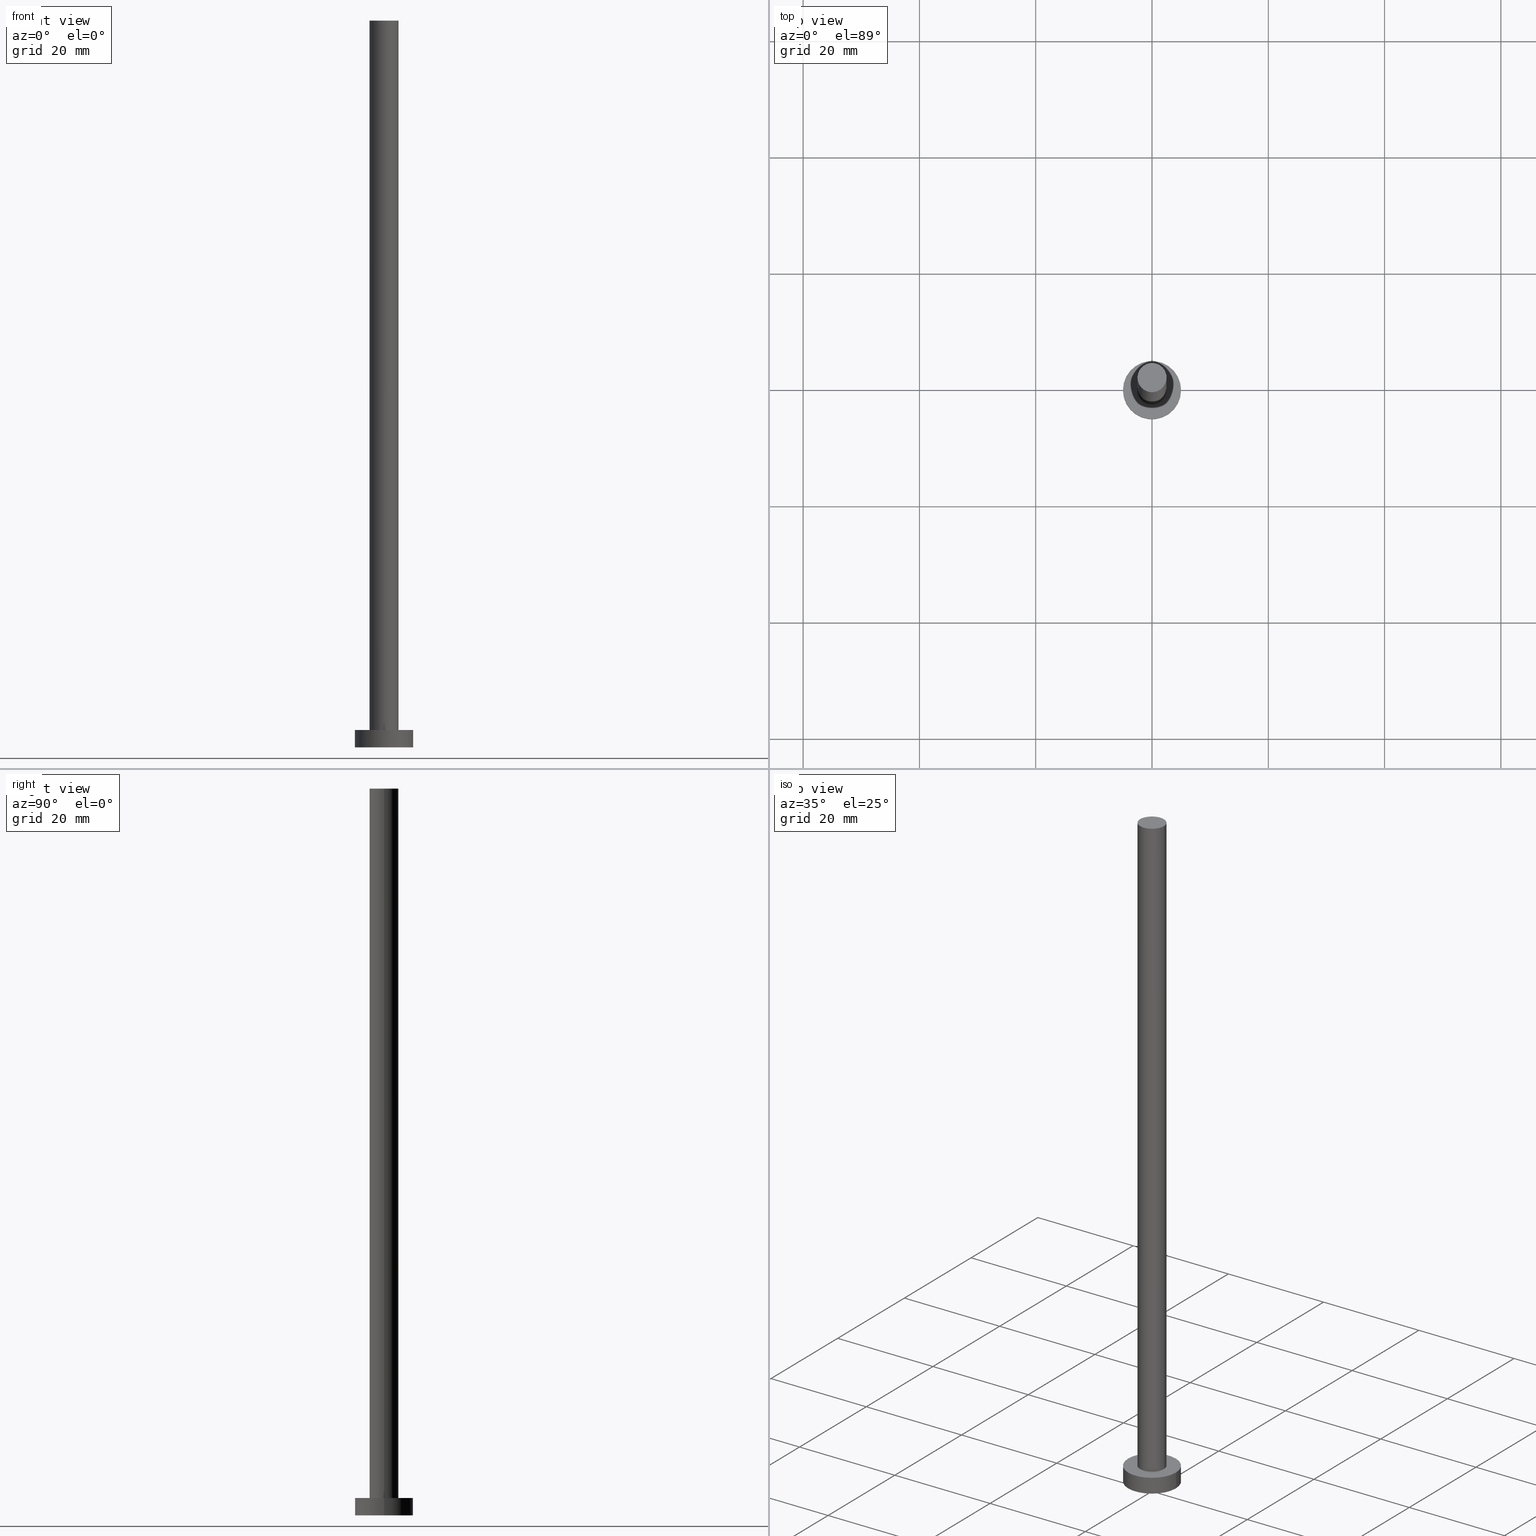
[diagram: canonical four-view strip — front | top / right | iso, engineering-drawing reading convention]
A machine part, canonical four-view strip (front | top / right | iso — engineering-drawing reading convention). The complete STEP part file that produces these views, byte-faithful:
ISO-10303-21;
HEADER;
FILE_DESCRIPTION (( 'STEP AP203' ),
    '1' );
FILE_NAME ('808c.STEP',
    '2023-02-13T13:26:53',
    ( '' ),
    ( '' ),
    'SwSTEP 2.0',
    'SolidWorks 2019',
    '' );
FILE_SCHEMA (( 'CONFIG_CONTROL_DESIGN' ));
ENDSEC;

DATA;
#1 = ORIENTED_EDGE ( 'NONE', *, *, #114, .F. ) ;
#2 = CYLINDRICAL_SURFACE ( 'NONE', #237, 5.000000000000000000 ) ;
#3 = ORIENTED_EDGE ( 'NONE', *, *, #49, .F. ) ;
#4 =( NAMED_UNIT ( * ) PLANE_ANGLE_UNIT ( ) SI_UNIT ( $, .RADIAN. ) );
#5 = DIRECTION ( 'NONE',  ( 1.000000000000000000, 0.000000000000000000, -0.000000000000000000 ) ) ;
#6 = CARTESIAN_POINT ( 'NONE',  ( 0.000000000000000000, 0.000000000000000000, 3.000000000000000000 ) ) ;
#7 = DIRECTION ( 'NONE',  ( 1.000000000000000000, 0.000000000000000000, 0.000000000000000000 ) ) ;
#8 = DIRECTION ( 'NONE',  ( 0.000000000000000000, 0.000000000000000000, 1.000000000000000000 ) ) ;
#9 = CALENDAR_DATE ( 2023, 13, 2 ) ;
#10 = DIRECTION ( 'NONE',  ( 1.000000000000000000, 0.000000000000000000, 0.000000000000000000 ) ) ;
#11 = CALENDAR_DATE ( 2023, 13, 2 ) ;
#12 = ADVANCED_FACE ( 'NONE', ( #46 ), #204, .T. ) ;
#13 = EDGE_LOOP ( 'NONE', ( #78, #92 ) ) ;
#14 = VERTEX_POINT ( 'NONE', #210 ) ;
#15 = CARTESIAN_POINT ( 'NONE',  ( 0.000000000000000000, 0.000000000000000000, 3.000000000000000000 ) ) ;
#16 = ORIENTED_EDGE ( 'NONE', *, *, #49, .T. ) ;
#17 = CIRCLE ( 'NONE', #250, 5.000000000000000000 ) ;
#18 = APPROVAL_PERSON_ORGANIZATION ( #249, #51, #170 ) ;
#19 = LINE ( 'NONE', #34, #159 ) ;
#20 = DIRECTION ( 'NONE',  ( 1.000000000000000000, 0.000000000000000000, 0.000000000000000000 ) ) ;
#21 = CARTESIAN_POINT ( 'NONE',  ( 5.000000000000000000, 6.123233995736766282E-16, 3.000000000000000000 ) ) ;
#22 = ADVANCED_FACE ( 'NONE', ( #90, #168 ), #69, .T. ) ;
#23 = APPROVAL_DATE_TIME ( #40, #27 ) ;
#24 = DIRECTION ( 'NONE',  ( 1.000000000000000000, 0.000000000000000000, 0.000000000000000000 ) ) ;
#25 = AXIS2_PLACEMENT_3D ( 'NONE', #6, #76, #20 ) ;
#26 = DIRECTION ( 'NONE',  ( -0.000000000000000000, -0.000000000000000000, -1.000000000000000000 ) ) ;
#27 = APPROVAL ( #221, 'NEUR�EN�' ) ;
#28 = PRODUCT_RELATED_PRODUCT_CATEGORY ( 'detail', '', ( #61 ) ) ;
#29 = CALENDAR_DATE ( 2023, 13, 2 ) ;
#30 = EDGE_LOOP ( 'NONE', ( #3, #115, #214, #74 ) ) ;
#31 = CIRCLE ( 'NONE', #219, 2.500000000000000000 ) ;
#32 = ORIENTED_EDGE ( 'NONE', *, *, #225, .T. ) ;
#33 = ORIENTED_EDGE ( 'NONE', *, *, #207, .T. ) ;
#34 = CARTESIAN_POINT ( 'NONE',  ( -5.000000000000000000, 0.000000000000000000, 3.000000000000000000 ) ) ;
#35 = CIRCLE ( 'NONE', #25, 2.500000000000000000 ) ;
#36 = DIRECTION ( 'NONE',  ( -0.000000000000000000, -0.000000000000000000, -1.000000000000000000 ) ) ;
#37 = DIRECTION ( 'NONE',  ( 1.000000000000000000, 0.000000000000000000, 0.000000000000000000 ) ) ;
#38 = CC_DESIGN_DATE_AND_TIME_ASSIGNMENT ( #154, #252, ( #119 ) ) ;
#39 = EDGE_CURVE ( 'NONE', #108, #135, #56, .T. ) ;
#40 = DATE_AND_TIME ( #203, #137 ) ;
#41 = CARTESIAN_POINT ( 'NONE',  ( 2.500000000000000000, 3.061616997868382648E-16, 125.0000000000000000 ) ) ;
#42 = CC_DESIGN_APPROVAL ( #125, ( #208 ) ) ;
#43 = PERSON_AND_ORGANIZATION ( #180, #251 ) ;
#44 = APPLICATION_CONTEXT ( 'configuration controlled 3d designs of mechanical parts and assemblies' ) ;
#45 = DIRECTION ( 'NONE',  ( 1.000000000000000000, 0.000000000000000000, 0.000000000000000000 ) ) ;
#46 = FACE_OUTER_BOUND ( 'NONE', #96, .T. ) ;
#47 = AXIS2_PLACEMENT_3D ( 'NONE', #183, #60, #37 ) ;
#48 = CARTESIAN_POINT ( 'NONE',  ( 0.000000000000000000, 0.000000000000000000, 125.0000000000000000 ) ) ;
#49 = EDGE_CURVE ( 'NONE', #108, #70, #222, .T. ) ;
#50 = APPROVAL_DATE_TIME ( #209, #51 ) ;
#51 = APPROVAL ( #166, 'NEUR�EN�' ) ;
#52 = DIRECTION ( 'NONE',  ( 1.000000000000000000, 0.000000000000000000, -0.000000000000000000 ) ) ;
#53 = ORIENTED_EDGE ( 'NONE', *, *, #114, .T. ) ;
#54 =( NAMED_UNIT ( * ) SI_UNIT ( $, .STERADIAN. ) SOLID_ANGLE_UNIT ( ) );
#55 = DIRECTION ( 'NONE',  ( 0.000000000000000000, 0.000000000000000000, 1.000000000000000000 ) ) ;
#56 = LINE ( 'NONE', #41, #73 ) ;
#57 = CARTESIAN_POINT ( 'NONE',  ( -2.500000000000000000, 0.000000000000000000, 125.0000000000000000 ) ) ;
#58 = CC_DESIGN_APPROVAL ( #27, ( #247 ) ) ;
#59 = CC_DESIGN_DATE_AND_TIME_ASSIGNMENT ( #224, #240, ( #208 ) ) ;
#60 = DIRECTION ( 'NONE',  ( 0.000000000000000000, 0.000000000000000000, 1.000000000000000000 ) ) ;
#61 = PRODUCT ( '808c', '808c', '', ( #162 ) ) ;
#62 = COORDINATED_UNIVERSAL_TIME_OFFSET ( 1, 0, .AHEAD. ) ;
#63 = DIRECTION ( 'NONE',  ( 1.000000000000000000, 0.000000000000000000, 0.000000000000000000 ) ) ;
#64 = APPROVAL_STATUS ( 'not_yet_approved' ) ;
#65 = AXIS2_PLACEMENT_3D ( 'NONE', #223, #124, #24 ) ;
#66 = CARTESIAN_POINT ( 'NONE',  ( -5.000000000000000000, 0.000000000000000000, 3.000000000000000000 ) ) ;
#67 = ORIENTED_EDGE ( 'NONE', *, *, #184, .T. ) ;
#68 = PERSON_AND_ORGANIZATION_ROLE ( 'creator' ) ;
#69 = PLANE ( 'NONE',  #191 ) ;
#70 = VERTEX_POINT ( 'NONE', #57 ) ;
#71 = ORIENTED_EDGE ( 'NONE', *, *, #254, .T. ) ;
#72 = DIRECTION ( 'NONE',  ( -1.000000000000000000, 0.000000000000000000, 0.000000000000000000 ) ) ;
#73 = VECTOR ( 'NONE', #36, 1000.000000000000000 ) ;
#74 = ORIENTED_EDGE ( 'NONE', *, *, #225, .F. ) ;
#75 = CARTESIAN_POINT ( 'NONE',  ( 0.000000000000000000, 0.000000000000000000, 0.000000000000000000 ) ) ;
#76 = DIRECTION ( 'NONE',  ( 0.000000000000000000, 0.000000000000000000, 1.000000000000000000 ) ) ;
#77 = EDGE_CURVE ( 'NONE', #232, #177, #17, .T. ) ;
#78 = ORIENTED_EDGE ( 'NONE', *, *, #254, .F. ) ;
#79 = ADVANCED_FACE ( 'NONE', ( #157 ), #235, .F. ) ;
#80 = CLOSED_SHELL ( 'NONE', ( #217, #128, #123, #22, #79, #12, #86 ) ) ;
#81 = CIRCLE ( 'NONE', #65, 5.000000000000000000 ) ;
#82 = CARTESIAN_POINT ( 'NONE',  ( 0.000000000000000000, 0.000000000000000000, 125.0000000000000000 ) ) ;
#83 = PERSON_AND_ORGANIZATION_ROLE ( 'creator' ) ;
#84 = DIRECTION ( 'NONE',  ( 0.000000000000000000, 0.000000000000000000, 1.000000000000000000 ) ) ;
#85 = CC_DESIGN_PERSON_AND_ORGANIZATION_ASSIGNMENT ( #245, #105, ( #61 ) ) ;
#86 = ADVANCED_FACE ( 'NONE', ( #99 ), #142, .T. ) ;
#87 = AXIS2_PLACEMENT_3D ( 'NONE', #82, #112, #229 ) ;
#88 = EDGE_LOOP ( 'NONE', ( #197, #94, #193, #1 ) ) ;
#89 = PERSON_AND_ORGANIZATION_ROLE ( 'classification_officer' ) ;
#90 = FACE_BOUND ( 'NONE', #13, .T. ) ;
#91 = CIRCLE ( 'NONE', #194, 2.500000000000000000 ) ;
#92 = ORIENTED_EDGE ( 'NONE', *, *, #134, .F. ) ;
#93 = APPLICATION_CONTEXT ( 'configuration controlled 3d designs of mechanical parts and assemblies' ) ;
#94 = ORIENTED_EDGE ( 'NONE', *, *, #190, .T. ) ;
#95 = DIRECTION ( 'NONE',  ( -0.000000000000000000, -0.000000000000000000, -1.000000000000000000 ) ) ;
#96 = EDGE_LOOP ( 'NONE', ( #133, #158, #32, #71 ) ) ;
#97 = DIRECTION ( 'NONE',  ( 0.000000000000000000, 0.000000000000000000, 1.000000000000000000 ) ) ;
#98 = DIRECTION ( 'NONE',  ( -1.000000000000000000, 0.000000000000000000, 0.000000000000000000 ) ) ;
#99 = FACE_OUTER_BOUND ( 'NONE', #138, .T. ) ;
#100 = CARTESIAN_POINT ( 'NONE',  ( 0.000000000000000000, 0.000000000000000000, 3.000000000000000000 ) ) ;
#101 = LOCAL_TIME ( 14, 26, 53.00000000000000000, #102 ) ;
#102 = COORDINATED_UNIVERSAL_TIME_OFFSET ( 1, 0, .AHEAD. ) ;
#103 = PERSON_AND_ORGANIZATION ( #180, #251 ) ;
#104 = CARTESIAN_POINT ( 'NONE',  ( 0.000000000000000000, 0.000000000000000000, 3.000000000000000000 ) ) ;
#105 = PERSON_AND_ORGANIZATION_ROLE ( 'design_owner' ) ;
#106 = VECTOR ( 'NONE', #243, 1000.000000000000000 ) ;
#107 = CC_DESIGN_APPROVAL ( #51, ( #119 ) ) ;
#108 = VERTEX_POINT ( 'NONE', #196 ) ;
#109 = VERTEX_POINT ( 'NONE', #120 ) ;
#110 = COORDINATED_UNIVERSAL_TIME_OFFSET ( 1, 0, .AHEAD. ) ;
#111 =( LENGTH_UNIT ( ) NAMED_UNIT ( * ) SI_UNIT ( .MILLI., .METRE. ) );
#112 = DIRECTION ( 'NONE',  ( -0.000000000000000000, -0.000000000000000000, -1.000000000000000000 ) ) ;
#113 = AXIS2_PLACEMENT_3D ( 'NONE', #131, #189, #206 ) ;
#114 = EDGE_CURVE ( 'NONE', #232, #175, #19, .T. ) ;
#115 = ORIENTED_EDGE ( 'NONE', *, *, #39, .T. ) ;
#116 = DIRECTION ( 'NONE',  ( 1.000000000000000000, 0.000000000000000000, -0.000000000000000000 ) ) ;
#117 = CYLINDRICAL_SURFACE ( 'NONE', #187, 5.000000000000000000 ) ;
#118 = AXIS2_PLACEMENT_3D ( 'NONE', #122, #97, #5 ) ;
#119 = SECURITY_CLASSIFICATION ( '', '', #192 ) ;
#120 = CARTESIAN_POINT ( 'NONE',  ( -2.500000000000000000, 0.000000000000000000, 3.000000000000000000 ) ) ;
#121 = CARTESIAN_POINT ( 'NONE',  ( -5.000000000000000000, 0.000000000000000000, 0.000000000000000000 ) ) ;
#122 = CARTESIAN_POINT ( 'NONE',  ( 0.000000000000000000, 0.000000000000000000, 125.0000000000000000 ) ) ;
#123 = ADVANCED_FACE ( 'NONE', ( #178 ), #2, .T. ) ;
#124 = DIRECTION ( 'NONE',  ( 0.000000000000000000, 0.000000000000000000, 1.000000000000000000 ) ) ;
#125 = APPROVAL ( #64, 'NEUR�EN�' ) ;
#126 = DIRECTION ( 'NONE',  ( 1.000000000000000000, 0.000000000000000000, 0.000000000000000000 ) ) ;
#127 = CARTESIAN_POINT ( 'NONE',  ( 5.000000000000000000, 6.123233995736766282E-16, 3.000000000000000000 ) ) ;
#128 = ADVANCED_FACE ( 'NONE', ( #236 ), #117, .T. ) ;
#129 = CIRCLE ( 'NONE', #47, 5.000000000000000000 ) ;
#130 = CC_DESIGN_SECURITY_CLASSIFICATION ( #119, ( #247 ) ) ;
#131 = CARTESIAN_POINT ( 'NONE',  ( 0.000000000000000000, 0.000000000000000000, 125.0000000000000000 ) ) ;
#132 = APPROVAL_PERSON_ORGANIZATION ( #143, #27, #148 ) ;
#133 = ORIENTED_EDGE ( 'NONE', *, *, #39, .F. ) ;
#134 = EDGE_CURVE ( 'NONE', #135, #109, #35, .T. ) ;
#135 = VERTEX_POINT ( 'NONE', #160 ) ;
#136 = EDGE_CURVE ( 'NONE', #14, #175, #129, .T. ) ;
#137 = LOCAL_TIME ( 14, 26, 53.00000000000000000, #220 ) ;
#138 = EDGE_LOOP ( 'NONE', ( #33, #16 ) ) ;
#139 = DIRECTION ( 'NONE',  ( -0.000000000000000000, -0.000000000000000000, -1.000000000000000000 ) ) ;
#140 = CARTESIAN_POINT ( 'NONE',  ( 0.000000000000000000, 0.000000000000000000, 125.0000000000000000 ) ) ;
#141 = PRODUCT_DEFINITION_SHAPE ( 'NONE', 'NONE',  #208 ) ;
#142 = PLANE ( 'NONE',  #118 ) ;
#143 = PERSON_AND_ORGANIZATION ( #180, #251 ) ;
#144 = DIRECTION ( 'NONE',  ( 0.000000000000000000, 0.000000000000000000, 1.000000000000000000 ) ) ;
#145 = CC_DESIGN_PERSON_AND_ORGANIZATION_ASSIGNMENT ( #103, #68, ( #247 ) ) ;
#146 = FACE_OUTER_BOUND ( 'NONE', #30, .T. ) ;
#147 = APPROVAL_DATE_TIME ( #241, #125 ) ;
#148 = APPROVAL_ROLE ( '' ) ;
#149 = SHAPE_DEFINITION_REPRESENTATION ( #141, #211 ) ;
#150 =( GEOMETRIC_REPRESENTATION_CONTEXT ( 3 ) GLOBAL_UNCERTAINTY_ASSIGNED_CONTEXT ( ( #212 ) ) GLOBAL_UNIT_ASSIGNED_CONTEXT ( ( #111, #4, #54 ) ) REPRESENTATION_CONTEXT ( 'NONE', 'WORKASPACE' ) );
#151 = PERSON_AND_ORGANIZATION_ROLE ( 'design_supplier' ) ;
#152 = CARTESIAN_POINT ( 'NONE',  ( 0.000000000000000000, 0.000000000000000000, 3.000000000000000000 ) ) ;
#153 = CC_DESIGN_PERSON_AND_ORGANIZATION_ASSIGNMENT ( #248, #89, ( #119 ) ) ;
#154 = DATE_AND_TIME ( #29, #171 ) ;
#155 = ORIENTED_EDGE ( 'NONE', *, *, #77, .T. ) ;
#156 = ORIENTED_EDGE ( 'NONE', *, *, #136, .F. ) ;
#157 = FACE_OUTER_BOUND ( 'NONE', #215, .T. ) ;
#158 = ORIENTED_EDGE ( 'NONE', *, *, #207, .F. ) ;
#159 = VECTOR ( 'NONE', #139, 1000.000000000000000 ) ;
#160 = CARTESIAN_POINT ( 'NONE',  ( 2.500000000000000000, 3.061616997868382648E-16, 3.000000000000000000 ) ) ;
#161 = AXIS2_PLACEMENT_3D ( 'NONE', #176, #55, #126 ) ;
#162 = MECHANICAL_CONTEXT ( 'NONE', #93, 'mechanical' ) ;
#163 = LINE ( 'NONE', #127, #106 ) ;
#164 = ORIENTED_EDGE ( 'NONE', *, *, #190, .F. ) ;
#165 = CYLINDRICAL_SURFACE ( 'NONE', #113, 2.500000000000000000 ) ;
#166 = APPROVAL_STATUS ( 'not_yet_approved' ) ;
#167 = COORDINATED_UNIVERSAL_TIME_OFFSET ( 1, 0, .AHEAD. ) ;
#168 = FACE_OUTER_BOUND ( 'NONE', #173, .T. ) ;
#169 = CC_DESIGN_PERSON_AND_ORGANIZATION_ASSIGNMENT ( #43, #83, ( #208 ) ) ;
#170 = APPROVAL_ROLE ( '' ) ;
#171 = LOCAL_TIME ( 14, 26, 53.00000000000000000, #167 ) ;
#172 = EDGE_LOOP ( 'NONE', ( #164, #234, #53, #195 ) ) ;
#173 = EDGE_LOOP ( 'NONE', ( #155, #67 ) ) ;
#174 = DESIGN_CONTEXT ( 'detailed design', #44, 'design' ) ;
#175 = VERTEX_POINT ( 'NONE', #121 ) ;
#176 = CARTESIAN_POINT ( 'NONE',  ( 0.000000000000000000, 0.000000000000000000, 0.000000000000000000 ) ) ;
#177 = VERTEX_POINT ( 'NONE', #21 ) ;
#178 = FACE_OUTER_BOUND ( 'NONE', #172, .T. ) ;
#179 = APPROVAL_PERSON_ORGANIZATION ( #202, #125, #188 ) ;
#180 = PERSON ( 'NEUR�EN�', 'NEUR�EN�', 'NEUR�EN�', ('NEUR�EN�'), ('NEUR�EN�'), ('NEUR�EN�') ) ;
#181 = CARTESIAN_POINT ( 'NONE',  ( 0.000000000000000000, 0.000000000000000000, 3.000000000000000000 ) ) ;
#182 = MANIFOLD_SOLID_BREP ( 'P�idat vysunut�m3', #80 ) ;
#183 = CARTESIAN_POINT ( 'NONE',  ( 0.000000000000000000, 0.000000000000000000, 0.000000000000000000 ) ) ;
#184 = EDGE_CURVE ( 'NONE', #177, #232, #205, .T. ) ;
#185 = DIRECTION ( 'NONE',  ( 0.000000000000000000, 0.000000000000000000, 1.000000000000000000 ) ) ;
#186 = DIRECTION ( 'NONE',  ( 0.000000000000000000, 0.000000000000000000, 1.000000000000000000 ) ) ;
#187 = AXIS2_PLACEMENT_3D ( 'NONE', #199, #95, #98 ) ;
#188 = APPROVAL_ROLE ( '' ) ;
#189 = DIRECTION ( 'NONE',  ( -0.000000000000000000, -0.000000000000000000, -1.000000000000000000 ) ) ;
#190 = EDGE_CURVE ( 'NONE', #177, #14, #163, .T. ) ;
#191 = AXIS2_PLACEMENT_3D ( 'NONE', #152, #230, #52 ) ;
#192 = SECURITY_CLASSIFICATION_LEVEL ( 'unclassified' ) ;
#193 = ORIENTED_EDGE ( 'NONE', *, *, #136, .T. ) ;
#194 = AXIS2_PLACEMENT_3D ( 'NONE', #48, #84, #63 ) ;
#195 = ORIENTED_EDGE ( 'NONE', *, *, #233, .T. ) ;
#196 = CARTESIAN_POINT ( 'NONE',  ( 2.500000000000000000, 3.061616997868382648E-16, 125.0000000000000000 ) ) ;
#197 = ORIENTED_EDGE ( 'NONE', *, *, #184, .F. ) ;
#198 = AXIS2_PLACEMENT_3D ( 'NONE', #75, #216, #116 ) ;
#199 = CARTESIAN_POINT ( 'NONE',  ( 0.000000000000000000, 0.000000000000000000, 3.000000000000000000 ) ) ;
#200 = APPLICATION_PROTOCOL_DEFINITION ( 'international standard', 'config_control_design', 1994, #93 ) ;
#201 = DIRECTION ( 'NONE',  ( -0.000000000000000000, -0.000000000000000000, -1.000000000000000000 ) ) ;
#202 = PERSON_AND_ORGANIZATION ( #180, #251 ) ;
#203 = CALENDAR_DATE ( 2023, 13, 2 ) ;
#204 = CYLINDRICAL_SURFACE ( 'NONE', #87, 2.500000000000000000 ) ;
#205 = CIRCLE ( 'NONE', #244, 5.000000000000000000 ) ;
#206 = DIRECTION ( 'NONE',  ( -1.000000000000000000, 0.000000000000000000, 0.000000000000000000 ) ) ;
#207 = EDGE_CURVE ( 'NONE', #70, #108, #91, .T. ) ;
#208 = PRODUCT_DEFINITION ( 'NEZN�M�', '', #247, #174 ) ;
#209 = DATE_AND_TIME ( #228, #238 ) ;
#210 = CARTESIAN_POINT ( 'NONE',  ( 5.000000000000000000, 6.123233995736766282E-16, 0.000000000000000000 ) ) ;
#211 = ADVANCED_BREP_SHAPE_REPRESENTATION ( '808c', ( #182, #161 ), #150 ) ;
#212 = UNCERTAINTY_MEASURE_WITH_UNIT (LENGTH_MEASURE( 1.000000000000000082E-05 ), #111, 'distance_accuracy_value', 'NONE');
#213 = LOCAL_TIME ( 14, 26, 53.00000000000000000, #62 ) ;
#214 = ORIENTED_EDGE ( 'NONE', *, *, #134, .T. ) ;
#215 = EDGE_LOOP ( 'NONE', ( #253, #156 ) ) ;
#216 = DIRECTION ( 'NONE',  ( 0.000000000000000000, 0.000000000000000000, 1.000000000000000000 ) ) ;
#217 = ADVANCED_FACE ( 'NONE', ( #146 ), #165, .T. ) ;
#218 = DIRECTION ( 'NONE',  ( 1.000000000000000000, 0.000000000000000000, 0.000000000000000000 ) ) ;
#219 = AXIS2_PLACEMENT_3D ( 'NONE', #104, #186, #10 ) ;
#220 = COORDINATED_UNIVERSAL_TIME_OFFSET ( 1, 0, .AHEAD. ) ;
#221 = APPROVAL_STATUS ( 'not_yet_approved' ) ;
#222 = CIRCLE ( 'NONE', #242, 2.500000000000000000 ) ;
#223 = CARTESIAN_POINT ( 'NONE',  ( 0.000000000000000000, 0.000000000000000000, 0.000000000000000000 ) ) ;
#224 = DATE_AND_TIME ( #9, #101 ) ;
#225 = EDGE_CURVE ( 'NONE', #70, #109, #227, .T. ) ;
#226 = VECTOR ( 'NONE', #26, 1000.000000000000000 ) ;
#227 = LINE ( 'NONE', #246, #226 ) ;
#228 = CALENDAR_DATE ( 2023, 13, 2 ) ;
#229 = DIRECTION ( 'NONE',  ( -1.000000000000000000, 0.000000000000000000, 0.000000000000000000 ) ) ;
#230 = DIRECTION ( 'NONE',  ( 0.000000000000000000, 0.000000000000000000, 1.000000000000000000 ) ) ;
#231 = PERSON_AND_ORGANIZATION ( #180, #251 ) ;
#232 = VERTEX_POINT ( 'NONE', #66 ) ;
#233 = EDGE_CURVE ( 'NONE', #175, #14, #81, .T. ) ;
#234 = ORIENTED_EDGE ( 'NONE', *, *, #77, .F. ) ;
#235 = PLANE ( 'NONE',  #198 ) ;
#236 = FACE_OUTER_BOUND ( 'NONE', #88, .T. ) ;
#237 = AXIS2_PLACEMENT_3D ( 'NONE', #15, #201, #72 ) ;
#238 = LOCAL_TIME ( 14, 26, 53.00000000000000000, #110 ) ;
#239 = APPLICATION_PROTOCOL_DEFINITION ( 'international standard', 'config_control_design', 1994, #44 ) ;
#240 = DATE_TIME_ROLE ( 'creation_date' ) ;
#241 = DATE_AND_TIME ( #11, #213 ) ;
#242 = AXIS2_PLACEMENT_3D ( 'NONE', #140, #144, #7 ) ;
#243 = DIRECTION ( 'NONE',  ( -0.000000000000000000, -0.000000000000000000, -1.000000000000000000 ) ) ;
#244 = AXIS2_PLACEMENT_3D ( 'NONE', #100, #185, #45 ) ;
#245 = PERSON_AND_ORGANIZATION ( #180, #251 ) ;
#246 = CARTESIAN_POINT ( 'NONE',  ( -2.500000000000000000, 0.000000000000000000, 125.0000000000000000 ) ) ;
#247 = PRODUCT_DEFINITION_FORMATION_WITH_SPECIFIED_SOURCE ( 'LIBOVOLN�', '', #61, .NOT_KNOWN. ) ;
#248 = PERSON_AND_ORGANIZATION ( #180, #251 ) ;
#249 = PERSON_AND_ORGANIZATION ( #180, #251 ) ;
#250 = AXIS2_PLACEMENT_3D ( 'NONE', #181, #8, #218 ) ;
#251 = ORGANIZATION ( 'NEUR�EN�', 'NEUR�EN�', '' ) ;
#252 = DATE_TIME_ROLE ( 'classification_date' ) ;
#253 = ORIENTED_EDGE ( 'NONE', *, *, #233, .F. ) ;
#254 = EDGE_CURVE ( 'NONE', #109, #135, #31, .T. ) ;
#255 = CC_DESIGN_PERSON_AND_ORGANIZATION_ASSIGNMENT ( #231, #151, ( #247 ) ) ;
ENDSEC;
END-ISO-10303-21;
